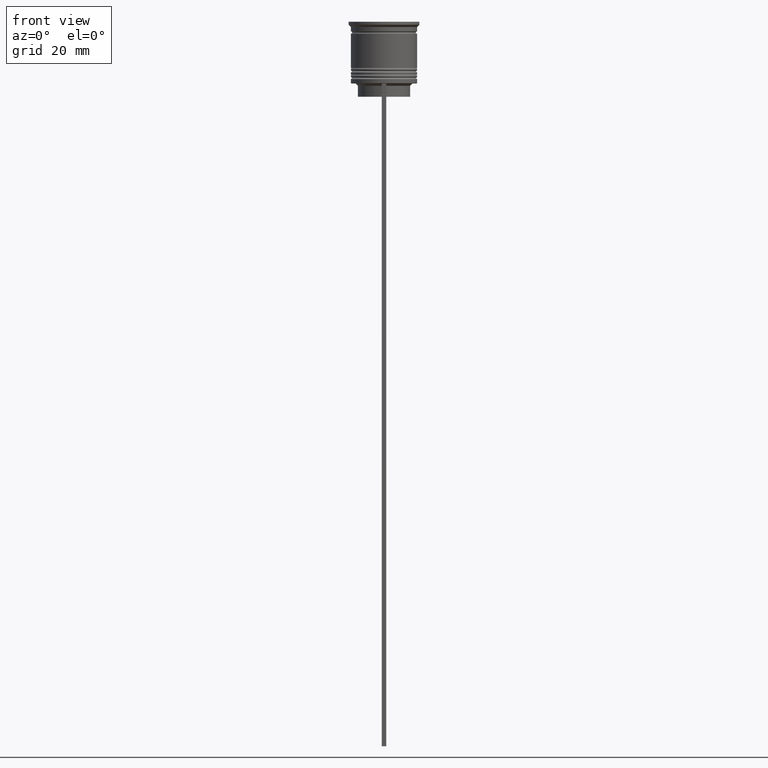
[diagram: clean part render]
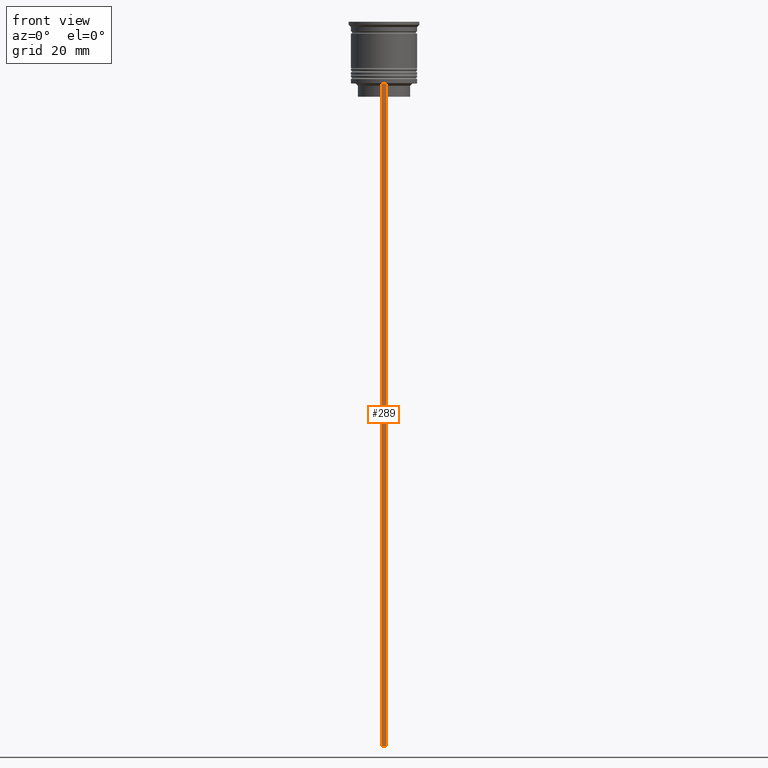
[diagram: same view with one face highlighted and labeled with its STEP entity id]
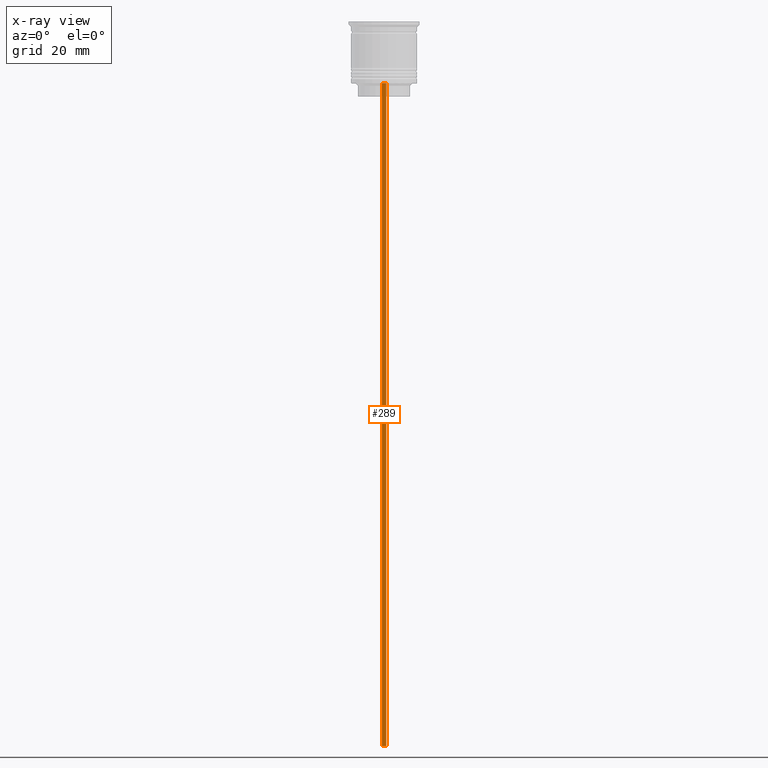
[diagram: x-ray of the same camera — body ghosted, the highlighted face saturated]
A machine part, front view. The second image highlights one B-rep face of the part: STEP entity #289.
The next image is the same camera in x-ray: the body ghosted, the highlighted face saturated — about 0% of this face is hidden behind the body in this view.
In plain terms, the highlighted planar face has unit normal (0, -1, -0).
Its self-contained STEP definition (entity closure, byte-faithful):
#8 = EDGE_LOOP ( 'NONE', ( #1953, #1579, #1758, #856 ) ) ;
#185 = DIRECTION ( 'NONE',  ( -1.000000000000000000, 0.000000000000000000, 0.000000000000000000 ) ) ;
#199 = PLANE ( 'NONE',  #2041 ) ;
#203 = DIRECTION ( 'NONE',  ( 1.000000000000000000, 0.000000000000000000, 0.000000000000000000 ) ) ;
#289 = ADVANCED_FACE ( 'NONE', ( #1351 ), #199, .T. ) ;
#392 = CARTESIAN_POINT ( 'NONE',  ( -0.5000000000000000000, -7.499999999999999112, 1.033296378372908997 ) ) ;
#445 = DIRECTION ( 'NONE',  ( 0.000000000000000000, 0.000000000000000000, -1.000000000000000000 ) ) ;
#605 = DIRECTION ( 'NONE',  ( 0.000000000000000000, 0.000000000000000000, -1.000000000000000000 ) ) ;
#740 = EDGE_CURVE ( 'NONE', #1354, #1891, #2112, .T. ) ;
#750 = VECTOR ( 'NONE', #203, 1000.000000000000000 ) ;
#763 = CARTESIAN_POINT ( 'NONE',  ( 0.5000000000000000000, -7.499999999999999112, -163.9999999999999716 ) ) ;
#781 = CARTESIAN_POINT ( 'NONE',  ( 0.5000000000000000000, -7.499999999999999112, -14.00000000000000178 ) ) ;
#844 = CARTESIAN_POINT ( 'NONE',  ( -0.5000000000000000000, -7.499999999999999112, -14.00000000000000178 ) ) ;
#856 = ORIENTED_EDGE ( 'NONE', *, *, #2020, .F. ) ;
#981 = CARTESIAN_POINT ( 'NONE',  ( 0.5000000000000000000, -7.499999999999999112, 1.033296378372908997 ) ) ;
#1028 = LINE ( 'NONE', #392, #1830 ) ;
#1098 = VECTOR ( 'NONE', #185, 1000.000000000000000 ) ;
#1142 = DIRECTION ( 'NONE',  ( 0.000000000000000000, 0.000000000000000000, -1.000000000000000000 ) ) ;
#1155 = DIRECTION ( 'NONE',  ( 0.000000000000000000, -1.000000000000000000, -0.000000000000000000 ) ) ;
#1269 = EDGE_CURVE ( 'NONE', #1838, #1891, #1028, .T. ) ;
#1336 = VERTEX_POINT ( 'NONE', #1793 ) ;
#1351 = FACE_OUTER_BOUND ( 'NONE', #8, .T. ) ;
#1354 = VERTEX_POINT ( 'NONE', #1750 ) ;
#1579 = ORIENTED_EDGE ( 'NONE', *, *, #1269, .T. ) ;
#1739 = EDGE_CURVE ( 'NONE', #1838, #1336, #2359, .T. ) ;
#1750 = CARTESIAN_POINT ( 'NONE',  ( 0.5000000000000000000, -7.499999999999999112, -163.9999999999999716 ) ) ;
#1758 = ORIENTED_EDGE ( 'NONE', *, *, #740, .F. ) ;
#1760 = CARTESIAN_POINT ( 'NONE',  ( -0.5000000000000000000, -7.499999999999999112, -163.9999999999999716 ) ) ;
#1793 = CARTESIAN_POINT ( 'NONE',  ( 0.5000000000000000000, -7.499999999999999112, -14.00000000000000178 ) ) ;
#1800 = CARTESIAN_POINT ( 'NONE',  ( 0.5000000000000000000, -7.499999999999999112, 1.033296378372908997 ) ) ;
#1830 = VECTOR ( 'NONE', #445, 1000.000000000000000 ) ;
#1838 = VERTEX_POINT ( 'NONE', #844 ) ;
#1891 = VERTEX_POINT ( 'NONE', #1760 ) ;
#1953 = ORIENTED_EDGE ( 'NONE', *, *, #1739, .F. ) ;
#2020 = EDGE_CURVE ( 'NONE', #1336, #1354, #2178, .T. ) ;
#2041 = AXIS2_PLACEMENT_3D ( 'NONE', #981, #1155, #1142 ) ;
#2112 = LINE ( 'NONE', #763, #1098 ) ;
#2178 = LINE ( 'NONE', #1800, #2333 ) ;
#2333 = VECTOR ( 'NONE', #605, 1000.000000000000000 ) ;
#2359 = LINE ( 'NONE', #781, #750 ) ;